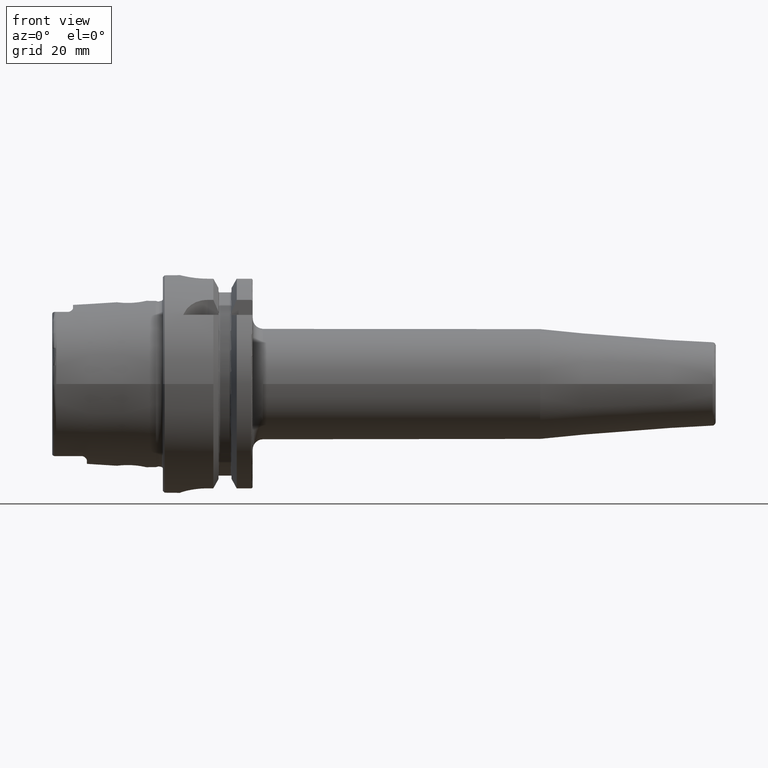
[diagram: clean part render]
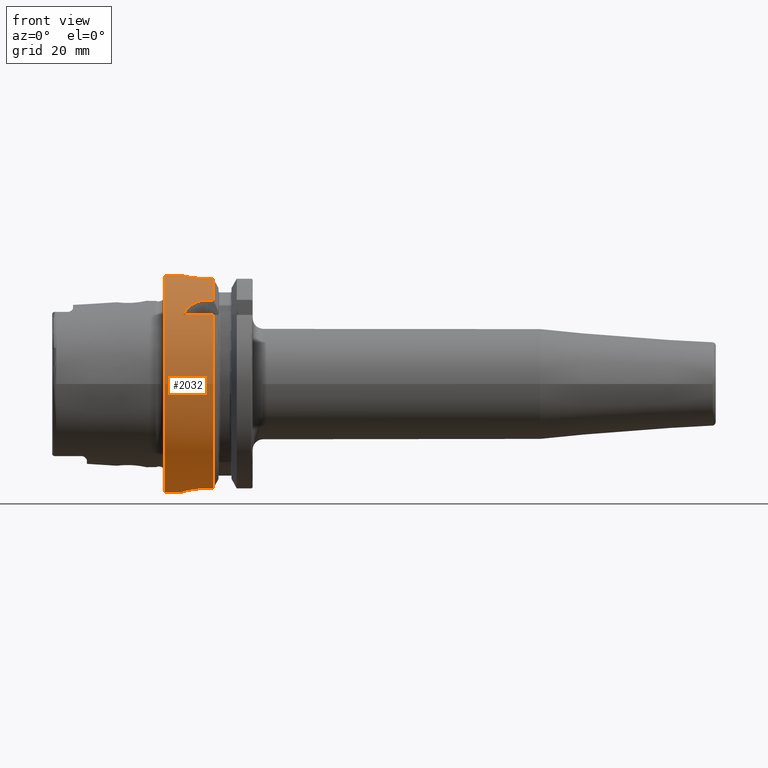
[diagram: same view with one face highlighted and labeled with its STEP entity id]
A machine part, front view. The second image highlights one B-rep face of the part: STEP entity #2032.
In plain terms, the highlighted cylindrical surface (bore or boss wall) has radius 31.5 mm, axis along (1, 0, 0).
Its self-contained STEP definition (entity closure, byte-faithful):
#57=B_SPLINE_CURVE_WITH_KNOTS('',3,(#3753,#3754,#3755,#3756,#3757,#3758,
#3759,#3760,#3761,#3762,#3763,#3764,#3765,#3766,#3767,#3768,#3769,#3770,
#3771,#3772,#3773,#3774,#3775,#3776,#3777,#3778),.UNSPECIFIED.,.F.,.F.,
(4,2,2,2,2,2,2,2,2,2,2,2,4),(0.,0.188688694287612,0.377377388575223,0.56606194688798,
0.754746505200737,0.943431063513494,1.13211562182625,1.32080431611386,1.50949301040147,
1.69818170468909,1.8868703989767,2.07555495728945,2.26423951560221),
 .UNSPECIFIED.);
#58=B_SPLINE_CURVE_WITH_KNOTS('',3,(#3779,#3780,#3781,#3782,#3783,#3784,
#3785,#3786,#3787,#3788),.UNSPECIFIED.,.F.,.F.,(4,2,2,2,4),(2.26423951560221,
2.45292407391497,2.64160863222773,2.83029732651534,3.01898602080295),
 .UNSPECIFIED.);
#61=B_SPLINE_CURVE_WITH_KNOTS('',3,(#3845,#3846,#3847,#3848,#3849,#3850,
#3851,#3852,#3853,#3854,#3855,#3856),.UNSPECIFIED.,.F.,.F.,(4,2,2,2,2,4),
(1.1085154204615,1.31979218709236,1.52798350480179,1.73617482251122,1.90421770126337,
2.07226058001552),.UNSPECIFIED.);
#71=B_SPLINE_CURVE_WITH_KNOTS('',3,(#4025,#4026,#4027,#4028,#4029,#4030,
#4031,#4032,#4033,#4034),.UNSPECIFIED.,.F.,.F.,(4,2,2,2,4),(1.20927420824097,
1.5131742975437,1.81707438684643,2.12000449915965,2.42293461147287),
 .UNSPECIFIED.);
#74=B_SPLINE_CURVE_WITH_KNOTS('',3,(#4060,#4061,#4062,#4063,#4064,#4065,
#4066,#4067,#4068,#4069),.UNSPECIFIED.,.F.,.F.,(4,2,2,2,4),(0.,0.30293011231322,
0.605860224626439,0.90976031392917,1.2136604032319),.UNSPECIFIED.);
#84=B_SPLINE_CURVE_WITH_KNOTS('',3,(#4215,#4216,#4217,#4218,#4219,#4220,
#4221,#4222,#4223,#4224,#4225,#4226,#4227,#4228,#4229,#4230,#4231,#4232),
 .UNSPECIFIED.,.F.,.F.,(4,2,2,2,2,2,2,2,4),(0.,0.302805879979318,0.605611759958635,
0.908372461246501,1.21113316253437,1.51389386382223,1.8166545651101,2.11946044508942,
2.42226632506874),.UNSPECIFIED.);
#104=FACE_BOUND('',#413,.T.);
#198=CYLINDRICAL_SURFACE('',#2258,31.5);
#287=FACE_OUTER_BOUND('',#412,.T.);
#412=EDGE_LOOP('',(#1736,#1737,#1738,#1739,#1740,#1741,#1742,#1743,#1744,
#1745,#1746,#1747,#1748,#1749,#1750,#1751,#1752,#1753));
#413=EDGE_LOOP('',(#1754,#1755));
#508=LINE('',#3820,#615);
#513=LINE('',#3865,#620);
#531=LINE('',#4042,#638);
#532=LINE('',#4046,#639);
#544=LINE('',#4209,#651);
#547=LINE('',#4239,#654);
#549=LINE('',#4245,#656);
#615=VECTOR('',#2592,10.);
#620=VECTOR('',#2603,10.);
#638=VECTOR('',#2667,10.);
#639=VECTOR('',#2670,10.);
#651=VECTOR('',#2748,10.);
#654=VECTOR('',#2759,10.);
#656=VECTOR('',#2767,31.5);
#727=CIRCLE('',#2201,31.5);
#728=CIRCLE('',#2202,31.5);
#736=CIRCLE('',#2222,31.5);
#737=CIRCLE('',#2224,31.5);
#751=CIRCLE('',#2259,31.5);
#752=CIRCLE('',#2260,31.5);
#897=VERTEX_POINT('',#3750);
#898=VERTEX_POINT('',#3752);
#906=VERTEX_POINT('',#3817);
#907=VERTEX_POINT('',#3819);
#911=VERTEX_POINT('',#3844);
#913=VERTEX_POINT('',#3861);
#918=VERTEX_POINT('',#3877);
#919=VERTEX_POINT('',#3879);
#944=VERTEX_POINT('',#4023);
#945=VERTEX_POINT('',#4024);
#946=VERTEX_POINT('',#4044);
#947=VERTEX_POINT('',#4045);
#950=VERTEX_POINT('',#4059);
#951=VERTEX_POINT('',#4074);
#967=VERTEX_POINT('',#4206);
#968=VERTEX_POINT('',#4208);
#969=VERTEX_POINT('',#4214);
#971=VERTEX_POINT('',#4244);
#1133=EDGE_CURVE('',#898,#897,#57,.T.);
#1134=EDGE_CURVE('',#897,#898,#58,.T.);
#1143=EDGE_CURVE('',#907,#906,#508,.T.);
#1149=EDGE_CURVE('',#906,#911,#61,.T.);
#1153=EDGE_CURVE('',#911,#913,#513,.T.);
#1159=EDGE_CURVE('',#907,#918,#727,.T.);
#1160=EDGE_CURVE('',#918,#919,#728,.T.);
#1194=EDGE_CURVE('',#944,#945,#71,.T.);
#1198=EDGE_CURVE('',#945,#919,#531,.T.);
#1199=EDGE_CURVE('',#946,#947,#532,.T.);
#1204=EDGE_CURVE('',#947,#950,#74,.T.);
#1206=EDGE_CURVE('',#950,#944,#736,.T.);
#1207=EDGE_CURVE('',#946,#951,#737,.T.);
#1239=EDGE_CURVE('',#968,#967,#544,.T.);
#1241=EDGE_CURVE('',#967,#969,#84,.T.);
#1245=EDGE_CURVE('',#969,#951,#547,.T.);
#1247=EDGE_CURVE('',#968,#913,#751,.T.);
#1248=EDGE_CURVE('',#918,#971,#549,.T.);
#1249=EDGE_CURVE('',#971,#971,#752,.T.);
#1736=ORIENTED_EDGE('',*,*,#1153,.T.);
#1737=ORIENTED_EDGE('',*,*,#1247,.F.);
#1738=ORIENTED_EDGE('',*,*,#1239,.T.);
#1739=ORIENTED_EDGE('',*,*,#1241,.T.);
#1740=ORIENTED_EDGE('',*,*,#1245,.T.);
#1741=ORIENTED_EDGE('',*,*,#1207,.F.);
#1742=ORIENTED_EDGE('',*,*,#1199,.T.);
#1743=ORIENTED_EDGE('',*,*,#1204,.T.);
#1744=ORIENTED_EDGE('',*,*,#1206,.T.);
#1745=ORIENTED_EDGE('',*,*,#1194,.T.);
#1746=ORIENTED_EDGE('',*,*,#1198,.T.);
#1747=ORIENTED_EDGE('',*,*,#1160,.F.);
#1748=ORIENTED_EDGE('',*,*,#1248,.T.);
#1749=ORIENTED_EDGE('',*,*,#1249,.T.);
#1750=ORIENTED_EDGE('',*,*,#1248,.F.);
#1751=ORIENTED_EDGE('',*,*,#1159,.F.);
#1752=ORIENTED_EDGE('',*,*,#1143,.T.);
#1753=ORIENTED_EDGE('',*,*,#1149,.T.);
#1754=ORIENTED_EDGE('',*,*,#1133,.T.);
#1755=ORIENTED_EDGE('',*,*,#1134,.T.);
#2032=ADVANCED_FACE('',(#287,#104),#198,.T.);
#2201=AXIS2_PLACEMENT_3D('',#3878,#2616,#2617);
#2202=AXIS2_PLACEMENT_3D('',#3880,#2618,#2619);
#2222=AXIS2_PLACEMENT_3D('',#4072,#2678,#2679);
#2224=AXIS2_PLACEMENT_3D('',#4075,#2682,#2683);
#2258=AXIS2_PLACEMENT_3D('',#4242,#2763,#2764);
#2259=AXIS2_PLACEMENT_3D('',#4243,#2765,#2766);
#2260=AXIS2_PLACEMENT_3D('',#4246,#2768,#2769);
#2592=DIRECTION('',(-1.,0.,0.));
#2603=DIRECTION('',(1.,0.,0.));
#2616=DIRECTION('center_axis',(1.,0.,0.));
#2617=DIRECTION('ref_axis',(0.,0.,-1.));
#2618=DIRECTION('center_axis',(1.,0.,0.));
#2619=DIRECTION('ref_axis',(0.,0.,-1.));
#2667=DIRECTION('',(1.,0.,0.));
#2670=DIRECTION('',(-1.,0.,0.));
#2678=DIRECTION('center_axis',(-1.,0.,0.));
#2679=DIRECTION('ref_axis',(0.,1.,0.));
#2682=DIRECTION('center_axis',(1.,0.,0.));
#2683=DIRECTION('ref_axis',(0.,0.,-1.));
#2748=DIRECTION('',(-1.,0.,0.));
#2759=DIRECTION('',(1.,0.,0.));
#2763=DIRECTION('center_axis',(1.,0.,0.));
#2764=DIRECTION('ref_axis',(0.,1.,0.));
#2765=DIRECTION('center_axis',(1.,0.,0.));
#2766=DIRECTION('ref_axis',(0.,0.,-1.));
#2767=DIRECTION('',(-1.,0.,0.));
#2768=DIRECTION('center_axis',(1.,0.,0.));
#2769=DIRECTION('ref_axis',(0.,0.,-1.));
#3750=CARTESIAN_POINT('',(12.,31.5,-6.12323399573677E-16));
#3752=CARTESIAN_POINT('',(7.,31.100643080168,5.));
#3753=CARTESIAN_POINT('Ctrl Pts',(7.,31.100643080168,5.));
#3754=CARTESIAN_POINT('Ctrl Pts',(6.37103768570796,31.100643080168,5.));
#3755=CARTESIAN_POINT('Ctrl Pts',(5.70089281579202,31.1216953112949,4.87408354368814));
#3756=CARTESIAN_POINT('Ctrl Pts',(4.46931934300962,31.1973810209855,4.36348784122736));
#3757=CARTESIAN_POINT('Ctrl Pts',(3.90779781350673,31.2508828501623,3.97886562537221));
#3758=CARTESIAN_POINT('Ctrl Pts',(3.021144092268,31.3510329557602,3.09221190413348));
#3759=CARTESIAN_POINT('Ctrl Pts',(2.63651425348544,31.4042391414288,2.5306861925578));
#3760=CARTESIAN_POINT('Ctrl Pts',(2.12591301120586,31.4792463697936,1.29909839144709));
#3761=CARTESIAN_POINT('Ctrl Pts',(2.,31.5,0.62894852770919));
#3762=CARTESIAN_POINT('Ctrl Pts',(2.,31.5,-0.62894852770919));
#3763=CARTESIAN_POINT('Ctrl Pts',(2.12591301120586,31.4792463697936,-1.29909839144709));
#3764=CARTESIAN_POINT('Ctrl Pts',(2.63651425348544,31.4042391414288,-2.5306861925578));
#3765=CARTESIAN_POINT('Ctrl Pts',(3.021144092268,31.3510329557602,-3.09221190413348));
#3766=CARTESIAN_POINT('Ctrl Pts',(3.90779781350673,31.2508828501623,-3.97886562537221));
#3767=CARTESIAN_POINT('Ctrl Pts',(4.46931934300962,31.1973810209855,-4.36348784122736));
#3768=CARTESIAN_POINT('Ctrl Pts',(5.70089281579202,31.1216953112949,-4.87408354368814));
#3769=CARTESIAN_POINT('Ctrl Pts',(6.37103768570796,31.100643080168,-5.));
#3770=CARTESIAN_POINT('Ctrl Pts',(7.62896231429204,31.100643080168,-5.));
#3771=CARTESIAN_POINT('Ctrl Pts',(8.29910718420798,31.1216953112949,-4.87408354368814));
#3772=CARTESIAN_POINT('Ctrl Pts',(9.53068065699038,31.1973810209855,-4.36348784122736));
#3773=CARTESIAN_POINT('Ctrl Pts',(10.0922021864933,31.2508828501623,-3.97886562537221));
#3774=CARTESIAN_POINT('Ctrl Pts',(10.978855907732,31.3510329557602,-3.09221190413348));
#3775=CARTESIAN_POINT('Ctrl Pts',(11.3634857465146,31.4042391414288,-2.53068619255779));
#3776=CARTESIAN_POINT('Ctrl Pts',(11.8740869887941,31.4792463697936,-1.29909839144708));
#3777=CARTESIAN_POINT('Ctrl Pts',(12.,31.5,-0.62894852770919));
#3778=CARTESIAN_POINT('Ctrl Pts',(12.,31.5,-4.16333634234434E-16));
#3779=CARTESIAN_POINT('Ctrl Pts',(12.,31.5,-1.11022302462516E-15));
#3780=CARTESIAN_POINT('Ctrl Pts',(12.,31.5,0.628948527709188));
#3781=CARTESIAN_POINT('Ctrl Pts',(11.8740869887941,31.4792463697936,1.29909839144708));
#3782=CARTESIAN_POINT('Ctrl Pts',(11.3634857465146,31.4042391414288,2.53068619255779));
#3783=CARTESIAN_POINT('Ctrl Pts',(10.978855907732,31.3510329557602,3.09221190413348));
#3784=CARTESIAN_POINT('Ctrl Pts',(10.0922021864933,31.2508828501623,3.97886562537221));
#3785=CARTESIAN_POINT('Ctrl Pts',(9.53068065699038,31.1973810209855,4.36348784122736));
#3786=CARTESIAN_POINT('Ctrl Pts',(8.29910718420798,31.1216953112949,4.87408354368814));
#3787=CARTESIAN_POINT('Ctrl Pts',(7.62896231429204,31.100643080168,5.));
#3788=CARTESIAN_POINT('Ctrl Pts',(7.,31.100643080168,5.));
#3817=CARTESIAN_POINT('',(5.88828609634419,-24.3361870472759,20.));
#3819=CARTESIAN_POINT('',(14.6225009252407,-24.3361870472759,20.));
#3820=CARTESIAN_POINT('',(7.56125046262034,-24.3361870472759,20.));
#3844=CARTESIAN_POINT('',(13.,-20.,24.3361870472759));
#3845=CARTESIAN_POINT('Ctrl Pts',(5.88828609634419,-24.3361870472759,20.));
#3846=CARTESIAN_POINT('Ctrl Pts',(6.11069532820048,-23.9044753723342,20.5253108035937));
#3847=CARTESIAN_POINT('Ctrl Pts',(6.38325999044306,-23.4713523250807,21.0173865932788));
#3848=CARTESIAN_POINT('Ctrl Pts',(7.044898076458,-22.6317364276543,21.9186738868096));
#3849=CARTESIAN_POINT('Ctrl Pts',(7.46714468561685,-22.1861072682036,22.3682920878559));
#3850=CARTESIAN_POINT('Ctrl Pts',(8.46725531403812,-21.3767026700071,23.143042657319));
#3851=CARTESIAN_POINT('Ctrl Pts',(9.04646427720221,-21.0147449478223,23.4683362269255));
#3852=CARTESIAN_POINT('Ctrl Pts',(10.1145001432702,-20.5200081116516,23.9011603796022));
#3853=CARTESIAN_POINT('Ctrl Pts',(10.670823971716,-20.3234249831704,24.0673462447194));
#3854=CARTESIAN_POINT('Ctrl Pts',(11.8334528721306,-20.063121855676,24.2847667849476));
#3855=CARTESIAN_POINT('Ctrl Pts',(12.4398570708262,-20.,24.3361870472759));
#3856=CARTESIAN_POINT('Ctrl Pts',(13.,-20.,24.3361870472759));
#3861=CARTESIAN_POINT('',(14.6225009252407,-20.,24.3361870472759));
#3865=CARTESIAN_POINT('',(7.56125046262035,-20.,24.3361870472759));
#3877=CARTESIAN_POINT('',(14.6225009252407,-31.5,-3.85763741731416E-15));
#3878=CARTESIAN_POINT('Origin',(14.6225009252407,0.,0.));
#3879=CARTESIAN_POINT('',(14.6225009252407,-9.,-30.1869176962472));
#3880=CARTESIAN_POINT('Origin',(14.6225009252407,0.,0.));
#4023=CARTESIAN_POINT('',(5.,-0.999999999999999,-31.4841229828623));
#4024=CARTESIAN_POINT('',(13.,-9.,-30.1869176962472));
#4025=CARTESIAN_POINT('Ctrl Pts',(5.,-0.999999999999997,-31.4841229828623));
#4026=CARTESIAN_POINT('Ctrl Pts',(5.,-2.01248971281587,-31.4519642432536));
#4027=CARTESIAN_POINT('Ctrl Pts',(5.2037733306458,-3.08756640398171,-31.3640631381934));
#4028=CARTESIAN_POINT('Ctrl Pts',(6.02370102555041,-5.05836608044729,-31.1070804719497));
#4029=CARTESIAN_POINT('Ctrl Pts',(6.63955745341061,-5.95454409907418,-30.9405445582004));
#4030=CARTESIAN_POINT('Ctrl Pts',(8.05472493283182,-7.36715009628369,-30.6348764237341));
#4031=CARTESIAN_POINT('Ctrl Pts',(8.9496642215883,-7.98063403850821,-30.4752177477269));
#4032=CARTESIAN_POINT('Ctrl Pts',(10.9171740660538,-8.79719825889174,-30.2496070227108));
#4033=CARTESIAN_POINT('Ctrl Pts',(11.9902329589559,-9.,-30.1869176962472));
#4034=CARTESIAN_POINT('Ctrl Pts',(13.,-9.,-30.1869176962472));
#4042=CARTESIAN_POINT('',(7.56125046262035,-8.99999999999999,-30.1869176962472));
#4044=CARTESIAN_POINT('',(14.6225009252407,9.,-30.1869176962472));
#4045=CARTESIAN_POINT('',(13.,9.00000000000001,-30.1869176962472));
#4046=CARTESIAN_POINT('',(7.56125046262034,9.00000000000001,-30.1869176962472));
#4059=CARTESIAN_POINT('',(5.,1.,-31.4841229828623));
#4060=CARTESIAN_POINT('Ctrl Pts',(13.,9.00000000000001,-30.1869176962472));
#4061=CARTESIAN_POINT('Ctrl Pts',(11.9902329589559,9.00000000000001,-30.1869176962472));
#4062=CARTESIAN_POINT('Ctrl Pts',(10.9171740660538,8.79719825889175,-30.2496070227108));
#4063=CARTESIAN_POINT('Ctrl Pts',(8.9496642215883,7.98063403850822,-30.4752177477269));
#4064=CARTESIAN_POINT('Ctrl Pts',(8.05472493283182,7.3671500962837,-30.6348764237341));
#4065=CARTESIAN_POINT('Ctrl Pts',(6.63955745341061,5.95454409907419,-30.9405445582004));
#4066=CARTESIAN_POINT('Ctrl Pts',(6.02370102555041,5.0583660804473,-31.1070804719497));
#4067=CARTESIAN_POINT('Ctrl Pts',(5.2037733306458,3.08756640398172,-31.3640631381934));
#4068=CARTESIAN_POINT('Ctrl Pts',(5.,2.01248971281588,-31.4519642432536));
#4069=CARTESIAN_POINT('Ctrl Pts',(5.,1.00000000000001,-31.4841229828623));
#4072=CARTESIAN_POINT('Origin',(5.,0.,0.));
#4074=CARTESIAN_POINT('',(14.6225009252407,8.,30.4671954731642));
#4075=CARTESIAN_POINT('Origin',(14.6225009252407,0.,0.));
#4206=CARTESIAN_POINT('',(13.,-8.,30.4671954731642));
#4208=CARTESIAN_POINT('',(14.6225009252407,-8.,30.4671954731642));
#4209=CARTESIAN_POINT('',(7.56125046262034,-8.,30.4671954731642));
#4214=CARTESIAN_POINT('',(13.,8.,30.4671954731642));
#4215=CARTESIAN_POINT('Ctrl Pts',(13.,-8.,30.4671954731643));
#4216=CARTESIAN_POINT('Ctrl Pts',(11.9906470667356,-8.,30.4671954731643));
#4217=CARTESIAN_POINT('Ctrl Pts',(10.9172075930168,-7.79737202490167,30.5225803085525));
#4218=CARTESIAN_POINT('Ctrl Pts',(8.94758399331801,-6.97961067526075,30.719895002943));
#4219=CARTESIAN_POINT('Ctrl Pts',(8.05099322370438,-6.36470172268915,30.8586830127239));
#4220=CARTESIAN_POINT('Ctrl Pts',(6.63540388828045,-4.94911238726521,31.1170994373341));
#4221=CARTESIAN_POINT('Ctrl Pts',(6.02041263015313,-4.05247770930662,31.2539072689014));
#4222=CARTESIAN_POINT('Ctrl Pts',(5.20259114887399,-2.08269813865027,31.4466478906396));
#4223=CARTESIAN_POINT('Ctrl Pts',(5.,-1.00920233762622,31.5));
#4224=CARTESIAN_POINT('Ctrl Pts',(5.,1.00920233762622,31.5));
#4225=CARTESIAN_POINT('Ctrl Pts',(5.20259114887399,2.08269813865027,31.4466478906396));
#4226=CARTESIAN_POINT('Ctrl Pts',(6.02041263015313,4.05247770930662,31.2539072689014));
#4227=CARTESIAN_POINT('Ctrl Pts',(6.63540388828045,4.94911238726521,31.1170994373341));
#4228=CARTESIAN_POINT('Ctrl Pts',(8.05099322370439,6.36470172268915,30.8586830127239));
#4229=CARTESIAN_POINT('Ctrl Pts',(8.94758399331801,6.97961067526075,30.719895002943));
#4230=CARTESIAN_POINT('Ctrl Pts',(10.9172075930168,7.79737202490167,30.5225803085525));
#4231=CARTESIAN_POINT('Ctrl Pts',(11.9906470667356,8.,30.4671954731643));
#4232=CARTESIAN_POINT('Ctrl Pts',(13.,8.,30.4671954731643));
#4239=CARTESIAN_POINT('',(7.56125046262035,8.,30.4671954731642));
#4242=CARTESIAN_POINT('Origin',(7.56125046262034,0.,0.));
#4243=CARTESIAN_POINT('Origin',(14.6225009252407,0.,0.));
#4244=CARTESIAN_POINT('',(0.5,-31.5,-3.85763741731416E-15));
#4245=CARTESIAN_POINT('',(7.56125046262034,-31.5,-3.85763741731416E-15));
#4246=CARTESIAN_POINT('Origin',(0.5,0.,0.));